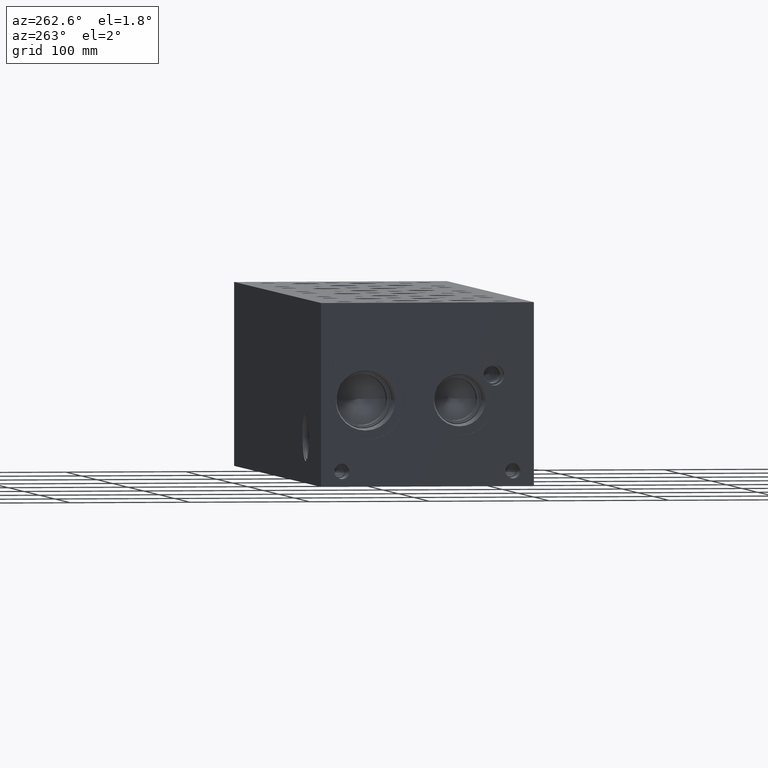
[diagram: clean part render]
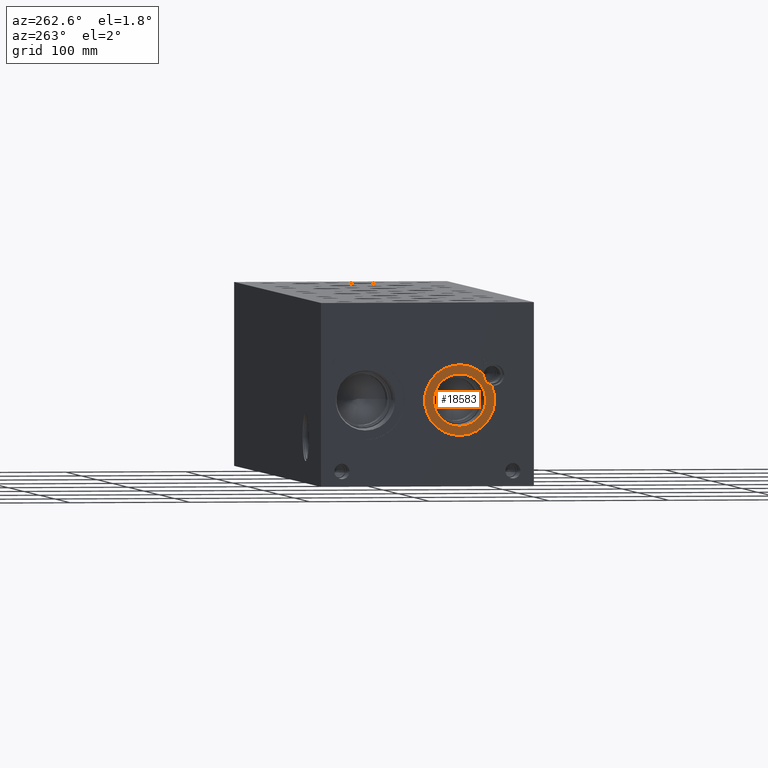
[diagram: same view with one face highlighted and labeled with its STEP entity id]
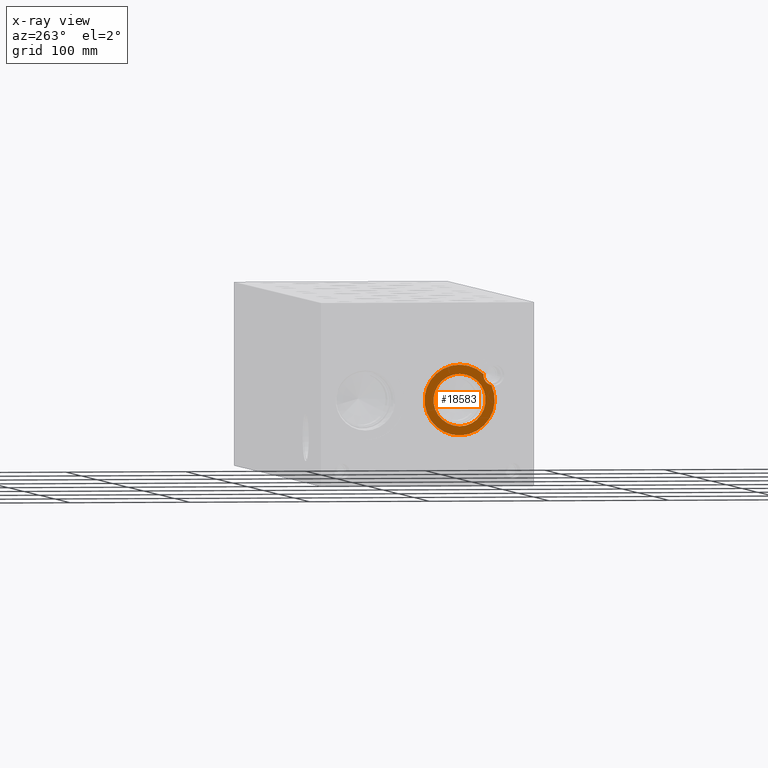
[diagram: x-ray of the same camera — body ghosted, the highlighted face saturated]
A machine part, auxiliary view. The second image highlights one B-rep face of the part: STEP entity #18583.
The next image is the same camera in x-ray: the body ghosted, the highlighted face saturated — about 0% of this face is hidden behind the body in this view.
In plain terms, the highlighted planar face has unit normal (1, 0, 0).
Its self-contained STEP definition (entity closure, byte-faithful):
#1069=CIRCLE('',#19936,8.6487);
#1073=CIRCLE('',#19944,29.2862);
#1074=CIRCLE('',#19945,21.7551);
#1075=CIRCLE('',#19946,21.7551);
#1660=FACE_BOUND('',#3769,.T.);
#2655=FACE_OUTER_BOUND('',#3768,.T.);
#3768=EDGE_LOOP('',(#16260,#16261));
#3769=EDGE_LOOP('',(#16262,#16263));
#8749=VERTEX_POINT('',#32149);
#8752=VERTEX_POINT('',#32156);
#8756=VERTEX_POINT('',#32172);
#8757=VERTEX_POINT('',#32173);
#11310=EDGE_CURVE('',#8749,#8752,#1069,.T.);
#11316=EDGE_CURVE('',#8749,#8752,#1073,.T.);
#11317=EDGE_CURVE('',#8756,#8757,#1074,.T.);
#11318=EDGE_CURVE('',#8757,#8756,#1075,.T.);
#16260=ORIENTED_EDGE('',*,*,#11310,.T.);
#16261=ORIENTED_EDGE('',*,*,#11316,.F.);
#16262=ORIENTED_EDGE('',*,*,#11317,.T.);
#16263=ORIENTED_EDGE('',*,*,#11318,.T.);
#17046=PLANE('',#19943);
#18583=ADVANCED_FACE('',(#2655,#1660),#17046,.F.);
#19936=AXIS2_PLACEMENT_3D('',#32158,#24170,#24171);
#19943=AXIS2_PLACEMENT_3D('',#32170,#24186,#24187);
#19944=AXIS2_PLACEMENT_3D('',#32171,#24188,#24189);
#19945=AXIS2_PLACEMENT_3D('',#32174,#24190,#24191);
#19946=AXIS2_PLACEMENT_3D('',#32175,#24192,#24193);
#24170=DIRECTION('center_axis',(1.,0.,0.));
#24171=DIRECTION('ref_axis',(0.,1.,0.));
#24186=DIRECTION('center_axis',(1.,0.,0.));
#24187=DIRECTION('ref_axis',(0.,0.,-1.));
#24188=DIRECTION('center_axis',(1.,0.,0.));
#24189=DIRECTION('ref_axis',(0.,0.,-1.));
#24190=DIRECTION('center_axis',(1.,0.,0.));
#24191=DIRECTION('ref_axis',(0.,0.,-1.));
#24192=DIRECTION('center_axis',(1.,0.,0.));
#24193=DIRECTION('ref_axis',(0.,0.,-1.));
#32149=CARTESIAN_POINT('',(0.7874,35.3167343442511,83.6588126649775));
#32156=CARTESIAN_POINT('',(0.7874,41.9402741828727,92.8323746062911));
#32158=CARTESIAN_POINT('Origin',(0.7874,33.3248,92.075));
#32170=CARTESIAN_POINT('Origin',(0.7874,61.9252,93.1799));
#32171=CARTESIAN_POINT('Origin',(0.7874,61.9252,71.4248));
#32172=CARTESIAN_POINT('',(0.7874,61.9252,93.1799));
#32173=CARTESIAN_POINT('',(0.7874,61.9252,49.6697));
#32174=CARTESIAN_POINT('Origin',(0.7874,61.9252,71.4248));
#32175=CARTESIAN_POINT('Origin',(0.7874,61.9252,71.4248));